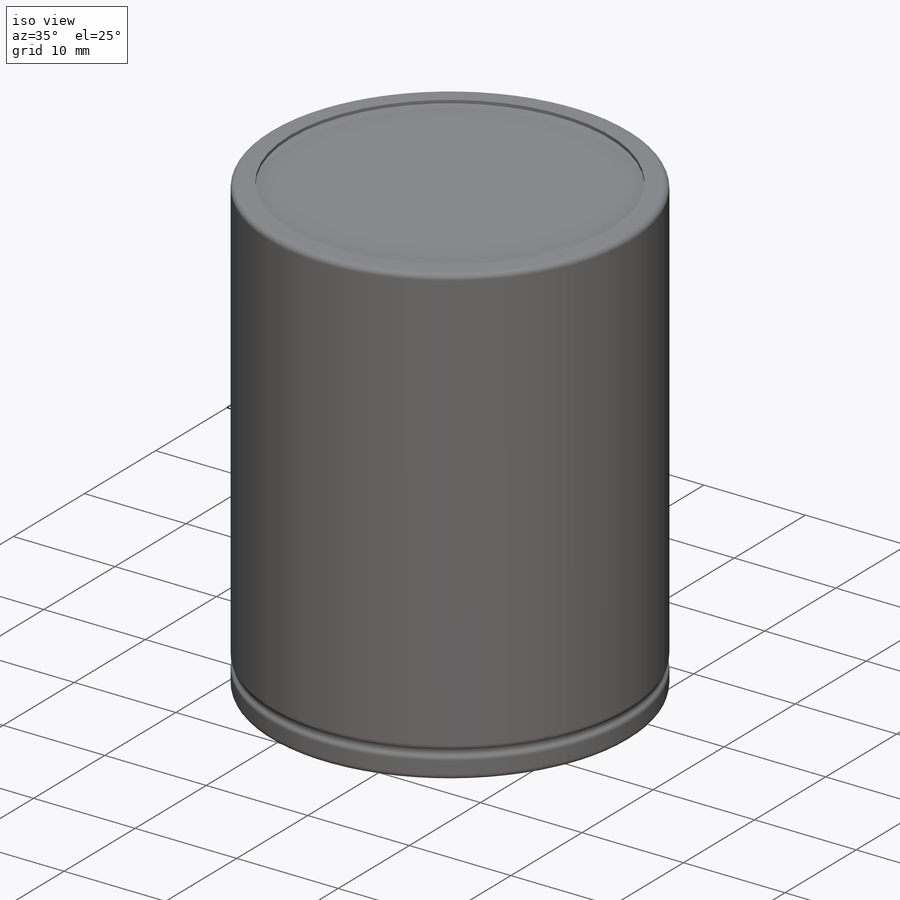
[diagram: iso view]
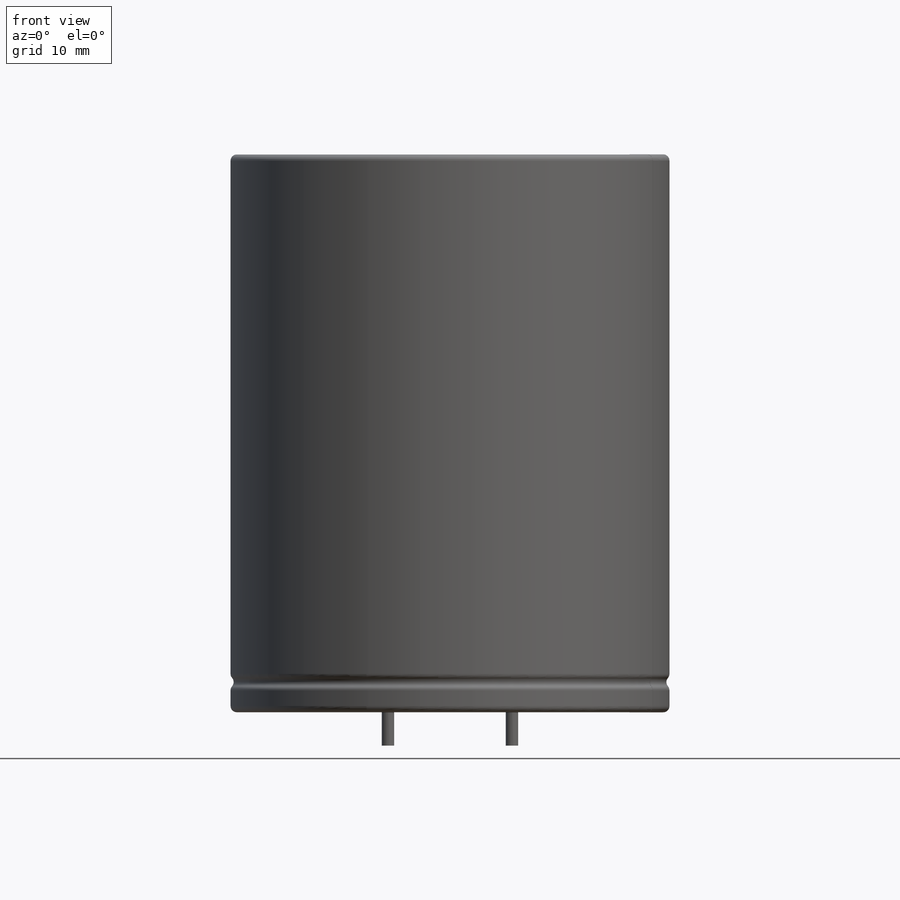
[diagram: front view]
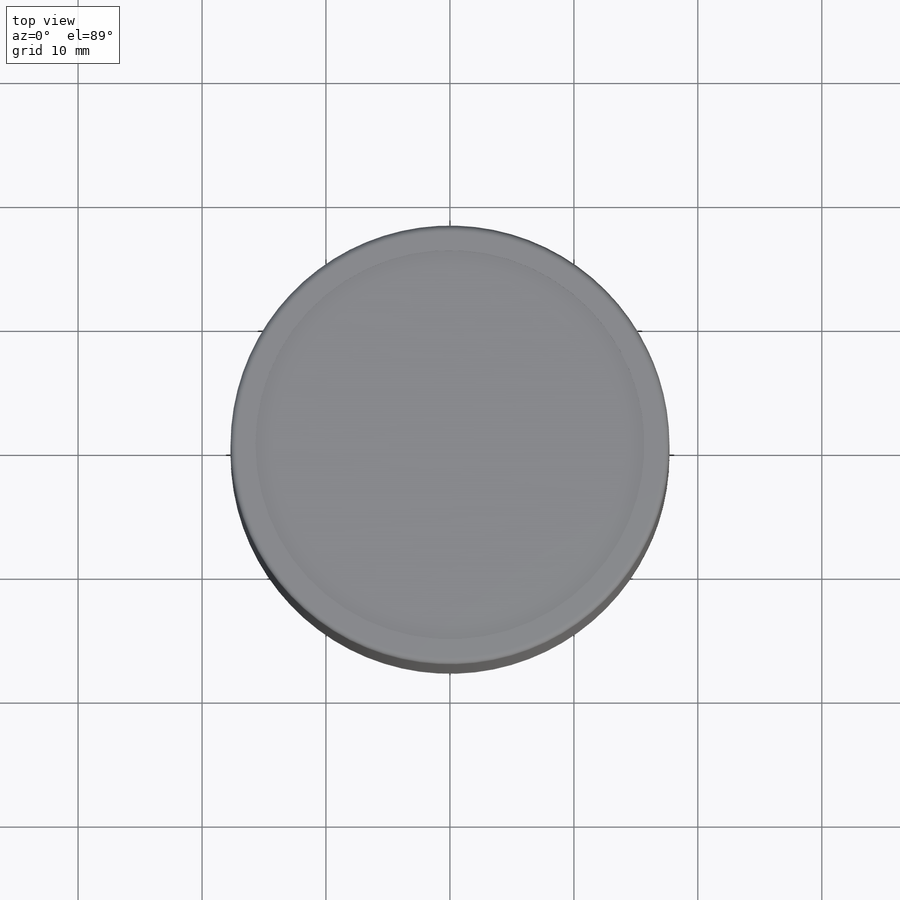
[diagram: top view]
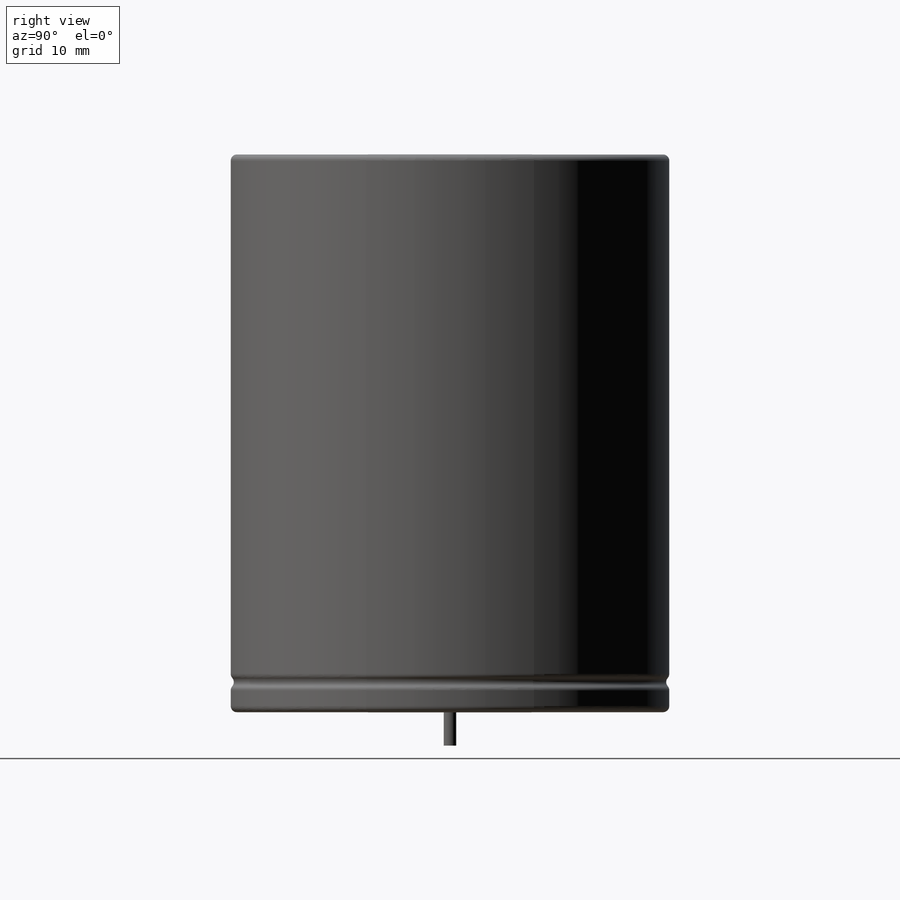
[diagram: right view]
SOLIDWORKS PART (.sldprt)
format: sldprt  version: not decoded by parser v0  size: 374,784 bytes
history: native  units: mm
features: sketch x3, revolve x2, material x1, extrude x1 (+13 scaffold rows collapsed)
feature tree (20):
  scaffold x13  (default folders/planes/origin — collapsed)
  material  "Cap"
  sketch  "Sketch1"  dims[c1.D3=0.5mm c1.D5=0.5mm c1.D8=0.3mm c1.D1=0.3mm c1.D2=2.0mm c2.D3=~6.78289mm c2.D4=2.0mm c2.D=35.4mm c2.L=45.0mm c2.D9=0.25mm]
  revolve  "Revolve1"  Angle=360deg
  sketch  "Sketch2"  dims[d=1.0mm D3=0.5mm S=10.0mm]
  extrude  "Extrude1"  Depth=3mm
  sketch  "Sketch3"  dims[D1=0.01mm]
  revolve  "Revolve2"  Angle=45deg
decode coverage: 6 of 6 modeling features carry decoded parameters
note: ~ marks probable driven/reference dimensions
note: suppression state not decoded; provenance and decode notes live in map.json
